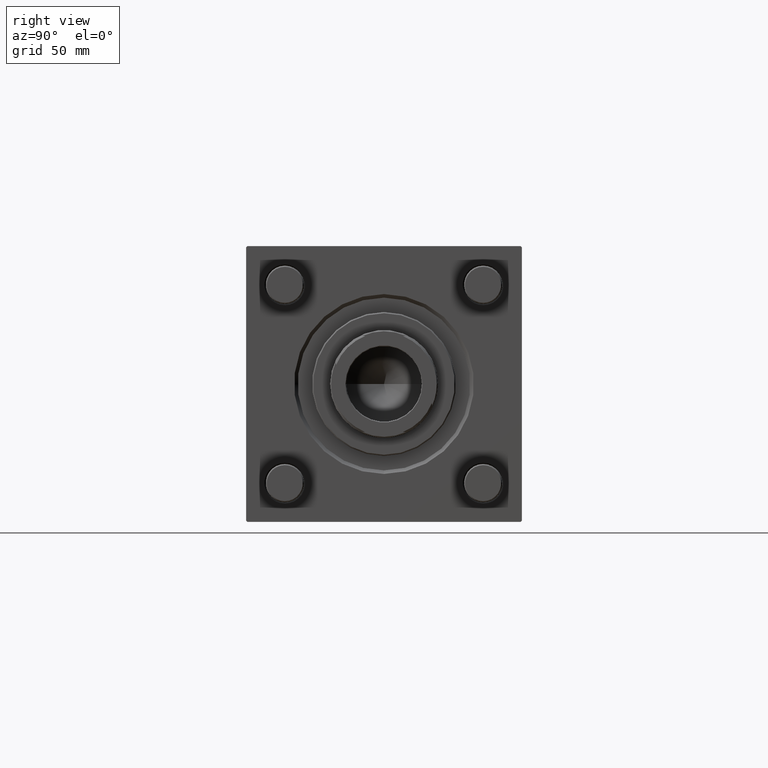
[diagram: clean part render]
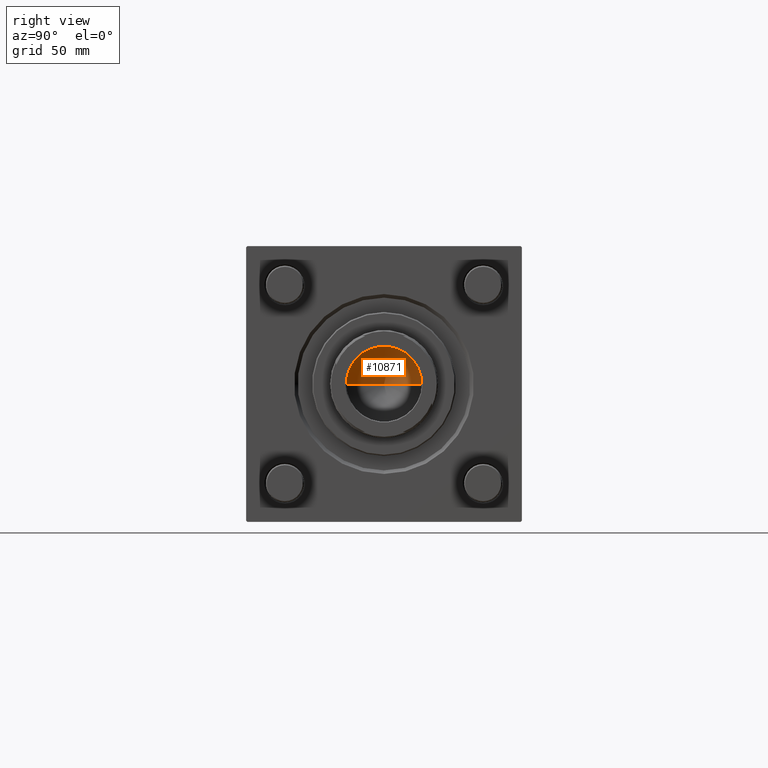
[diagram: same view with one face highlighted and labeled with its STEP entity id]
A machine part, right view. The second image highlights one B-rep face of the part: STEP entity #10871.
In plain terms, the highlighted conical surface has half-angle 59 deg.
Its self-contained STEP definition (entity closure, byte-faithful):
#883 = CARTESIAN_POINT ( 'NONE',  ( 0.000000000000000000, 0.000000000000000000, 111.0000000000000000 ) ) ;
#1161 = FACE_OUTER_BOUND ( 'NONE', #32719, .T. ) ;
#2171 = AXIS2_PLACEMENT_3D ( 'NONE', #35129, #7690, #43514 ) ;
#3337 = DIRECTION ( 'NONE',  ( 0.8571673007021115565, 0.000000000000000000, 0.5150380749100554878 ) ) ;
#4208 = LINE ( 'NONE', #51911, #9619 ) ;
#4412 = ORIENTED_EDGE ( 'NONE', *, *, #5164, .T. ) ;
#5164 = EDGE_CURVE ( 'NONE', #38003, #40417, #19066, .T. ) ;
#6995 = EDGE_CURVE ( 'NONE', #40417, #55164, #27096, .T. ) ;
#7039 = EDGE_CURVE ( 'NONE', #38003, #55164, #4208, .T. ) ;
#7690 = DIRECTION ( 'NONE',  ( -0.000000000000000000, -0.000000000000000000, 1.000000000000000000 ) ) ;
#9619 = VECTOR ( 'NONE', #3337, 1000.000000000000000 ) ;
#10871 = ADVANCED_FACE ( 'NONE', ( #1161 ), #53157, .F. ) ;
#18504 = DIRECTION ( 'NONE',  ( -0.000000000000000000, -0.000000000000000000, 1.000000000000000000 ) ) ;
#19066 = LINE ( 'NONE', #45082, #45537 ) ;
#20562 = ORIENTED_EDGE ( 'NONE', *, *, #6995, .T. ) ;
#23117 = DIRECTION ( 'NONE',  ( 1.000000000000000000, 0.000000000000000000, 0.000000000000000000 ) ) ;
#25723 = CARTESIAN_POINT ( 'NONE',  ( 15.74999999999998934, 0.000000000000000000, 111.0000000000000000 ) ) ;
#26571 = CARTESIAN_POINT ( 'NONE',  ( -15.74999999999998934, 1.928818708657080161E-15, 111.0000000000000000 ) ) ;
#27096 = CIRCLE ( 'NONE', #2171, 15.74999999999998934 ) ;
#27664 = CARTESIAN_POINT ( 'NONE',  ( -1.584115414415908206E-14, 0.000000000000000000, 101.5364452503159072 ) ) ;
#32719 = EDGE_LOOP ( 'NONE', ( #34092, #4412, #20562 ) ) ;
#34092 = ORIENTED_EDGE ( 'NONE', *, *, #7039, .F. ) ;
#35129 = CARTESIAN_POINT ( 'NONE',  ( 0.000000000000000000, 0.000000000000000000, 111.0000000000000000 ) ) ;
#38003 = VERTEX_POINT ( 'NONE', #27664 ) ;
#40417 = VERTEX_POINT ( 'NONE', #26571 ) ;
#41309 = DIRECTION ( 'NONE',  ( -0.8571673007021115565, 1.049727191138617710E-16, 0.5150380749100554878 ) ) ;
#43514 = DIRECTION ( 'NONE',  ( 1.000000000000000000, 0.000000000000000000, 0.000000000000000000 ) ) ;
#45082 = CARTESIAN_POINT ( 'NONE',  ( -15.74999999999998934, 1.928818708657080161E-15, 111.0000000000000000 ) ) ;
#45537 = VECTOR ( 'NONE', #41309, 1000.000000000000000 ) ;
#49424 = AXIS2_PLACEMENT_3D ( 'NONE', #883, #18504, #23117 ) ;
#51911 = CARTESIAN_POINT ( 'NONE',  ( 15.74999999999998934, 0.000000000000000000, 111.0000000000000000 ) ) ;
#53157 = CONICAL_SURFACE ( 'NONE', #49424, 15.74999999999998934, 1.029744258676652979 ) ;
#55164 = VERTEX_POINT ( 'NONE', #25723 ) ;